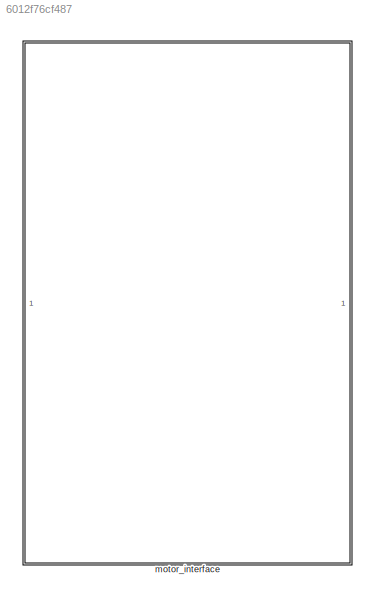
MODEL slx_6012f76cf487
KIND library
CONFIG AbsTol = auto
CONFIG EnableMultiTasking = off
CONFIG FixedStep = auto
CONFIG MaxStep = auto
CONFIG MinStep = auto
CONFIG RelTol = 1e-3
CONFIG SampleTimeConstraint = Unconstrained
CONFIG SolverName = VariableStepAuto
CONFIG StartTime = 0.0
CONFIG StopTime = 10.0
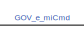
[diagram: motor_interface - part 1/4, top center region]
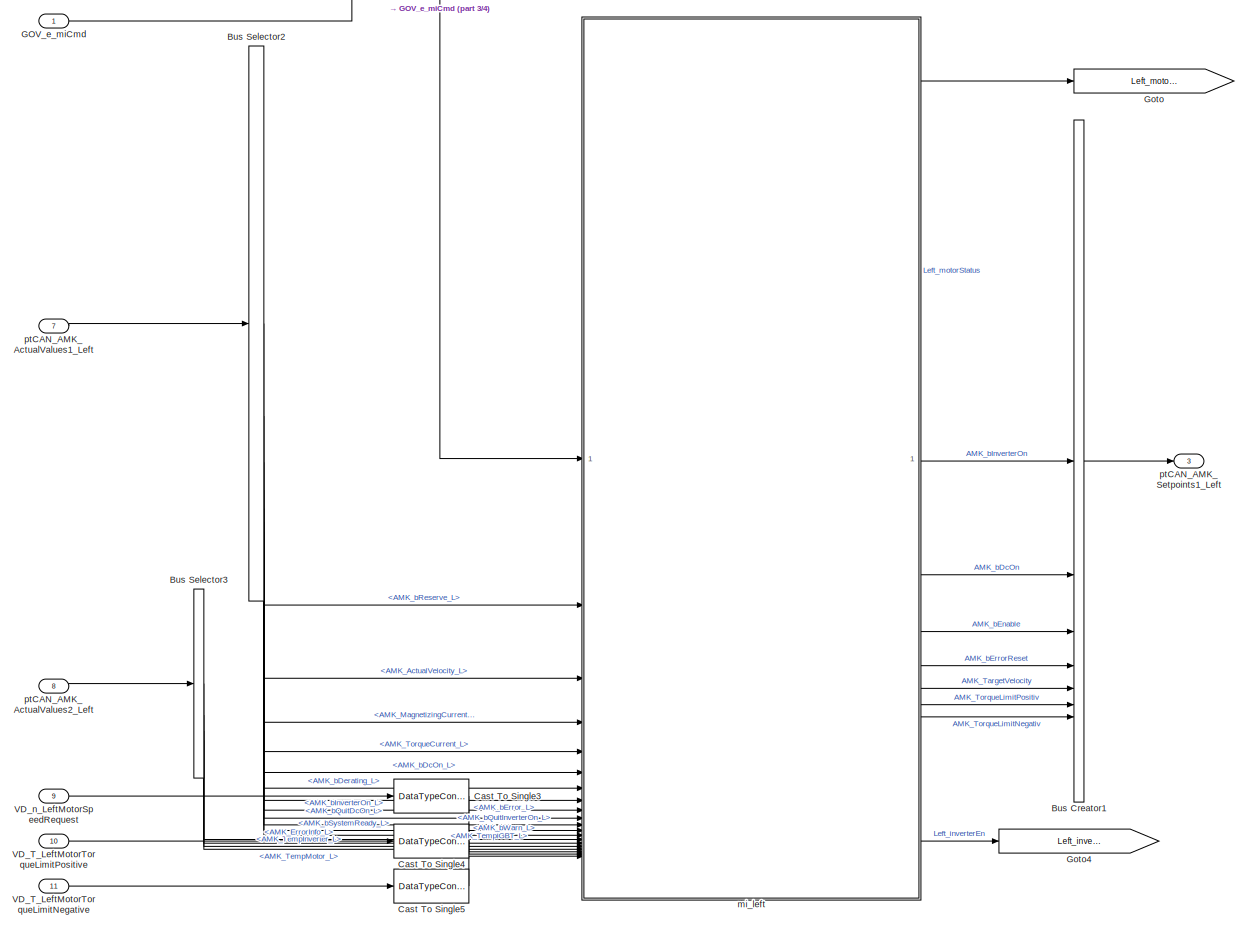
[diagram: motor_interface - part 2/4, top left region]
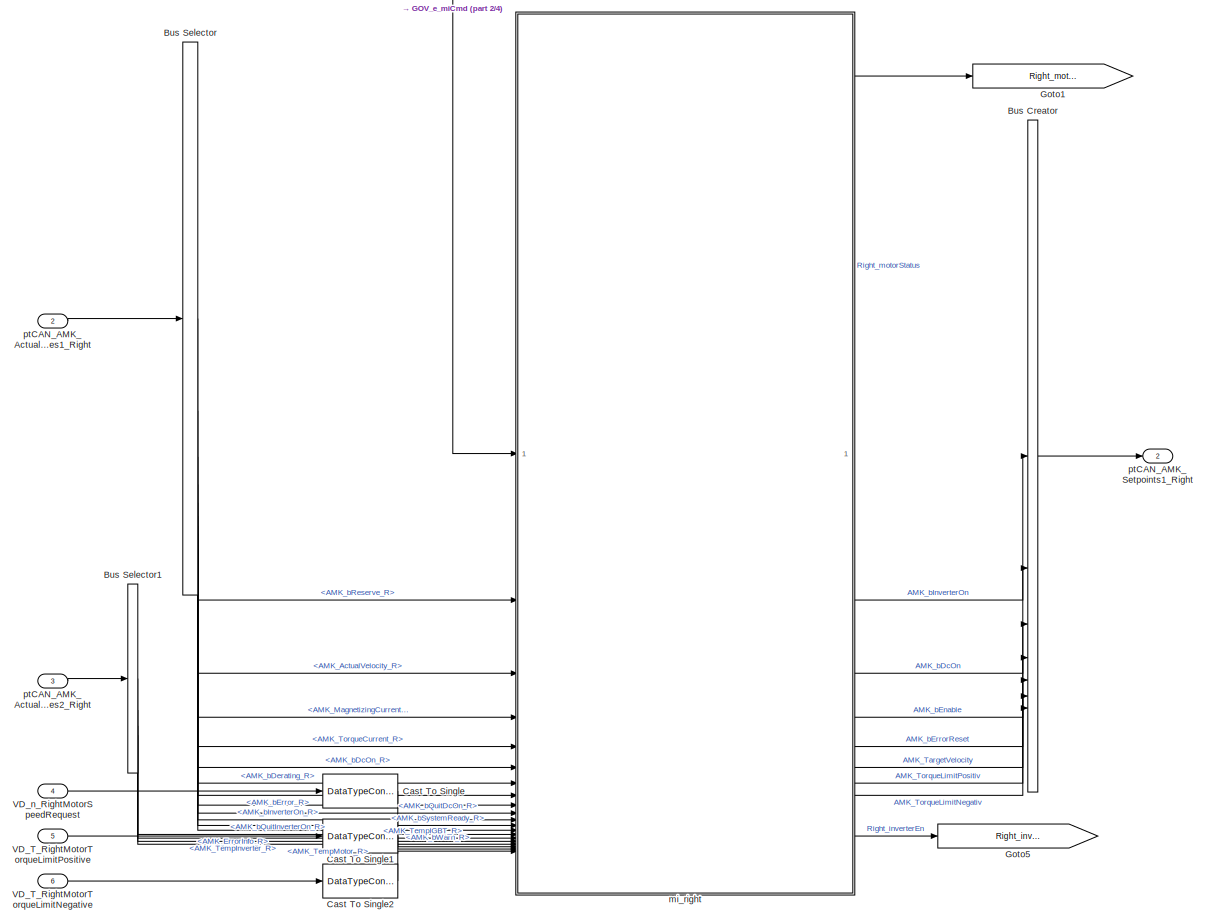
[diagram: motor_interface - part 3/4, top right region]
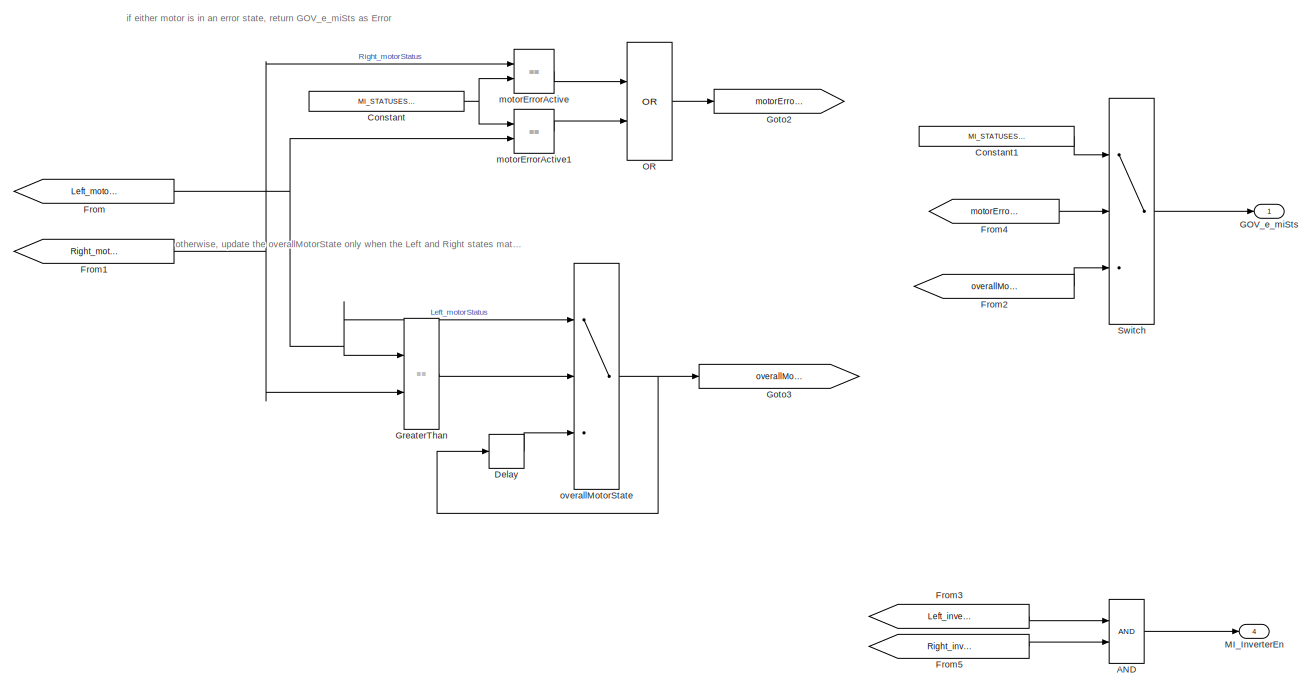
[diagram: motor_interface - part 4/4, bottom right region]
BLOCK [SubSystem] motor_interface
BLOCK [Logic] motor_interface/AND
  AllPortsSameDT = off
  OutDataTypeStr = boolean
BLOCK [BusCreator] motor_interface/Bus Creator
  DisplayOption = bar
  InheritFromInputs = on
  Inputs = 7
BLOCK [BusCreator] motor_interface/Bus Creator1
  DisplayOption = bar
  InheritFromInputs = on
  Inputs = 7
BLOCK [BusSelector] motor_interface/Bus Selector
  OutputSignals = AMK_bReserve_R,AMK_ActualVelocity_R,AMK_MagnetizingCurrent_R,AMK_TorqueCurrent_R,AMK_bDcOn_R,AMK_bDerating_R,AMK_bError_R,AMK_bInverterOn_R,AMK_bQuitDcOn_R,AMK_bQuitInverterOn_R,AMK_bSystemReady_R,AMK_bWarn_R
BLOCK [BusSelector] motor_interface/Bus Selector1
  OutputSignals = AMK_ErrorInfo_R,AMK_TempIGBT_R,AMK_TempInverter_R,AMK_TempMotor_R
BLOCK [BusSelector] motor_interface/Bus Selector2
  OutputSignals = AMK_bReserve_L,AMK_ActualVelocity_L,AMK_MagnetizingCurrent_L,AMK_TorqueCurrent_L,AMK_bDcOn_L,AMK_bDerating_L,AMK_bError_L,AMK_bInverterOn_L,AMK_bQuitDcOn_L,AMK_bQuitInverterOn_L,AMK_bSystemReady_L,AMK_bWarn_L
BLOCK [BusSelector] motor_interface/Bus Selector3
  OutputSignals = AMK_ErrorInfo_L,AMK_TempIGBT_L,AMK_TempInverter_L,AMK_TempMotor_L
BLOCK [DataTypeConversion] motor_interface/Cast To Single
  OutDataTypeStr = single
  RndMeth = Floor
  SaturateOnIntegerOverflow = off
BLOCK [DataTypeConversion] motor_interface/Cast To Single1
  OutDataTypeStr = single
  RndMeth = Floor
  SaturateOnIntegerOverflow = off
BLOCK [DataTypeConversion] motor_interface/Cast To Single2
  OutDataTypeStr = single
  RndMeth = Floor
  SaturateOnIntegerOverflow = off
BLOCK [DataTypeConversion] motor_interface/Cast To Single3
  OutDataTypeStr = single
  RndMeth = Floor
  SaturateOnIntegerOverflow = off
BLOCK [DataTypeConversion] motor_interface/Cast To Single4
  OutDataTypeStr = single
  RndMeth = Floor
  SaturateOnIntegerOverflow = off
BLOCK [DataTypeConversion] motor_interface/Cast To Single5
  OutDataTypeStr = single
  RndMeth = Floor
  SaturateOnIntegerOverflow = off
BLOCK [Constant] motor_interface/Constant
  OutDataTypeStr = Enum: MI_STATUSES
  Value = MI_STATUSES.MI_STS_ERROR
BLOCK [Constant] motor_interface/Constant1
  OutDataTypeStr = Enum: MI_STATUSES
  Value = MI_STATUSES.MI_STS_ERROR
BLOCK [Delay] motor_interface/Delay
  DelayLength = 1
  InitialCondition = MI_STATUSES.OFF
  InputPortMap = u0
BLOCK [From] motor_interface/From
  GotoTag = Left_motorStatus
BLOCK [From] motor_interface/From1
  GotoTag = Right_motorStatus
BLOCK [From] motor_interface/From2
  GotoTag = overallMotorState
BLOCK [From] motor_interface/From3
  GotoTag = Left_inverterEn
BLOCK [From] motor_interface/From4
  GotoTag = motorErrorActive
BLOCK [From] motor_interface/From5
  GotoTag = Right_inverterEn
BLOCK [Inport] motor_interface/GOV_e_miCmd
BLOCK [Outport] motor_interface/GOV_e_miSts
BLOCK [Goto] motor_interface/Goto
  GotoTag = Left_motorStatus
BLOCK [Goto] motor_interface/Goto1
  GotoTag = Right_motorStatus
BLOCK [Goto] motor_interface/Goto2
  GotoTag = motorErrorActive
BLOCK [Goto] motor_interface/Goto3
  GotoTag = overallMotorState
BLOCK [Goto] motor_interface/Goto4
  GotoTag = Left_inverterEn
BLOCK [Goto] motor_interface/Goto5
  GotoTag = Right_inverterEn
BLOCK [RelationalOperator] motor_interface/GreaterThan
  InputSameDT = off
  Operator = ==
  OutDataTypeStr = boolean
  RndMeth = Simplest
BLOCK [Outport] motor_interface/MI_InverterEn
  Port = 4
BLOCK [Logic] motor_interface/OR
  AllPortsSameDT = off
  IconShape = distinctive
  Operator = OR
  OutDataTypeStr = boolean
BLOCK [Switch] motor_interface/Switch
  Criteria = u2 > Threshold
  InputSameDT = off
  SaturateOnIntegerOverflow = off
BLOCK [Inport] motor_interface/VD_T_LeftMotorTorqueLimitNegative
  Port = 11
BLOCK [Inport] motor_interface/VD_T_LeftMotorTorqueLimitPositive
  Port = 10
BLOCK [Inport] motor_interface/VD_T_RightMotorTorqueLimitNegative
  Port = 6
BLOCK [Inport] motor_interface/VD_T_RightMotorTorqueLimitPositive
  Port = 5
BLOCK [Inport] motor_interface/VD_n_LeftMotorSpeedRequest
  Port = 9
BLOCK [Inport] motor_interface/VD_n_RightMotorSpeedRequest
  Port = 4
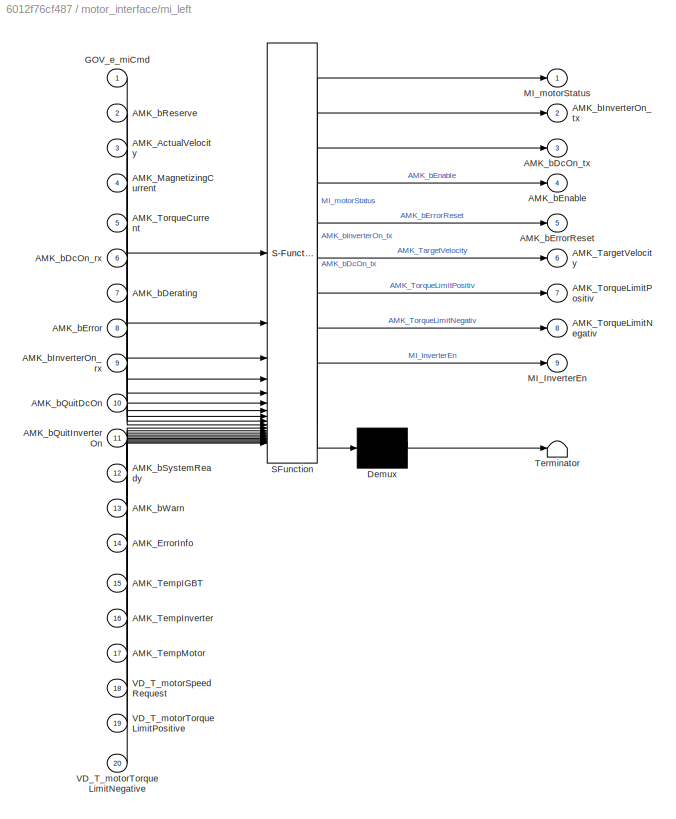
BLOCK [SubSystem] motor_interface/mi_left
  ErrorFcn = Stateflow.Translate.translate
  PermitHierarchicalResolution = ExplicitOnly
  SFBlockType = Chart
  TreatAsAtomicUnit = on
BLOCK [Demux] motor_interface/mi_left/ Demux 
  Outputs = 1
BLOCK [S-Function] motor_interface/mi_left/ SFunction 
  EnableBusSupport = off
  FunctionName = sf_sfun
  PortCounts = [20 10]
  SFcnIsStateOwnerBlock = off
  SFunctionDeploymentMode = off
  Tag = Stateflow S-Function 9
BLOCK [Terminator] motor_interface/mi_left/ Terminator 
BLOCK [Inport] motor_interface/mi_left/AMK_ActualVelocity
  Port = 3
BLOCK [Inport] motor_interface/mi_left/AMK_ErrorInfo
  Port = 14
BLOCK [Inport] motor_interface/mi_left/AMK_MagnetizingCurrent
  Port = 4
BLOCK [Outport] motor_interface/mi_left/AMK_TargetVelocity
  Port = 6
BLOCK [Inport] motor_interface/mi_left/AMK_TempIGBT
  Port = 15
BLOCK [Inport] motor_interface/mi_left/AMK_TempInverter
  Port = 16
BLOCK [Inport] motor_interface/mi_left/AMK_TempMotor
  Port = 17
BLOCK [Inport] motor_interface/mi_left/AMK_TorqueCurrent
  Port = 5
BLOCK [Outport] motor_interface/mi_left/AMK_TorqueLimitNegativ
  Port = 8
BLOCK [Outport] motor_interface/mi_left/AMK_TorqueLimitPositiv
  Port = 7
BLOCK [Inport] motor_interface/mi_left/AMK_bDcOn_rx
  Port = 6
BLOCK [Outport] motor_interface/mi_left/AMK_bDcOn_tx
  Port = 3
BLOCK [Inport] motor_interface/mi_left/AMK_bDerating
  Port = 7
BLOCK [Outport] motor_interface/mi_left/AMK_bEnable
  Port = 4
BLOCK [Inport] motor_interface/mi_left/AMK_bError
  Port = 8
BLOCK [Outport] motor_interface/mi_left/AMK_bErrorReset
  Port = 5
BLOCK [Inport] motor_interface/mi_left/AMK_bInverterOn_rx
  Port = 9
BLOCK [Outport] motor_interface/mi_left/AMK_bInverterOn_tx
  Port = 2
BLOCK [Inport] motor_interface/mi_left/AMK_bQuitDcOn
  Port = 10
BLOCK [Inport] motor_interface/mi_left/AMK_bQuitInverterOn
  Port = 11
BLOCK [Inport] motor_interface/mi_left/AMK_bReserve
  Port = 2
BLOCK [Inport] motor_interface/mi_left/AMK_bSystemReady
  Port = 12
BLOCK [Inport] motor_interface/mi_left/AMK_bWarn
  Port = 13
BLOCK [Inport] motor_interface/mi_left/GOV_e_miCmd
BLOCK [Outport] motor_interface/mi_left/MI_InverterEn
  Port = 9
BLOCK [Outport] motor_interface/mi_left/MI_motorStatus
BLOCK [Inport] motor_interface/mi_left/VD_T_motorSpeedRequest
  Port = 18
BLOCK [Inport] motor_interface/mi_left/VD_T_motorTorqueLimitNegative
  Port = 20
BLOCK [Inport] motor_interface/mi_left/VD_T_motorTorqueLimitPositive
  Port = 19
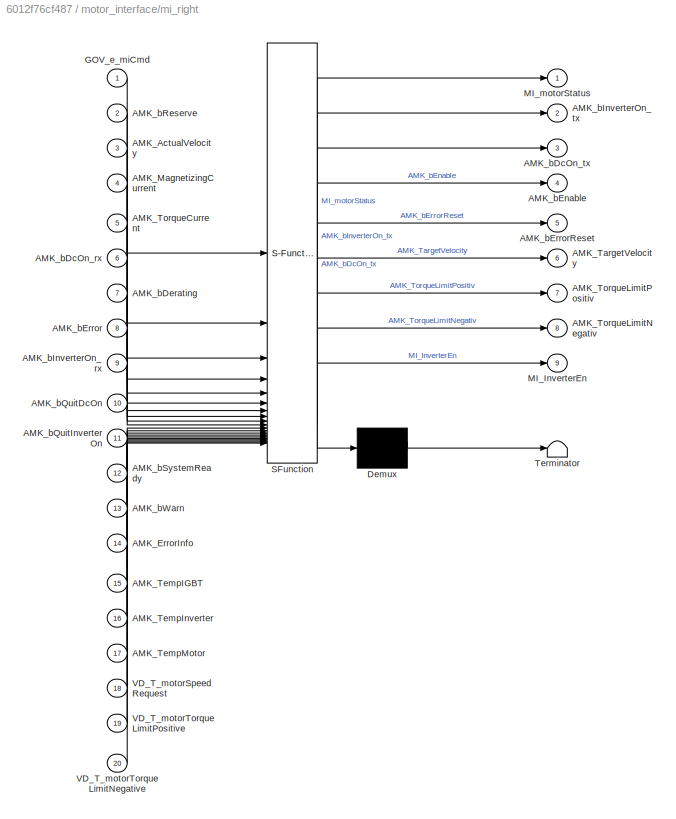
BLOCK [SubSystem] motor_interface/mi_right
  ErrorFcn = Stateflow.Translate.translate
  PermitHierarchicalResolution = ExplicitOnly
  SFBlockType = Chart
  TreatAsAtomicUnit = on
BLOCK [Demux] motor_interface/mi_right/ Demux 
  Outputs = 1
BLOCK [S-Function] motor_interface/mi_right/ SFunction 
  EnableBusSupport = off
  FunctionName = sf_sfun
  PortCounts = [20 10]
  SFcnIsStateOwnerBlock = off
  SFunctionDeploymentMode = off
  Tag = Stateflow S-Function 10
BLOCK [Terminator] motor_interface/mi_right/ Terminator 
BLOCK [Inport] motor_interface/mi_right/AMK_ActualVelocity
  Port = 3
BLOCK [Inport] motor_interface/mi_right/AMK_ErrorInfo
  Port = 14
BLOCK [Inport] motor_interface/mi_right/AMK_MagnetizingCurrent
  Port = 4
BLOCK [Outport] motor_interface/mi_right/AMK_TargetVelocity
  Port = 6
BLOCK [Inport] motor_interface/mi_right/AMK_TempIGBT
  Port = 15
BLOCK [Inport] motor_interface/mi_right/AMK_TempInverter
  Port = 16
BLOCK [Inport] motor_interface/mi_right/AMK_TempMotor
  Port = 17
BLOCK [Inport] motor_interface/mi_right/AMK_TorqueCurrent
  Port = 5
BLOCK [Outport] motor_interface/mi_right/AMK_TorqueLimitNegativ
  Port = 8
BLOCK [Outport] motor_interface/mi_right/AMK_TorqueLimitPositiv
  Port = 7
BLOCK [Inport] motor_interface/mi_right/AMK_bDcOn_rx
  Port = 6
BLOCK [Outport] motor_interface/mi_right/AMK_bDcOn_tx
  Port = 3
BLOCK [Inport] motor_interface/mi_right/AMK_bDerating
  Port = 7
BLOCK [Outport] motor_interface/mi_right/AMK_bEnable
  Port = 4
BLOCK [Inport] motor_interface/mi_right/AMK_bError
  Port = 8
BLOCK [Outport] motor_interface/mi_right/AMK_bErrorReset
  Port = 5
BLOCK [Inport] motor_interface/mi_right/AMK_bInverterOn_rx
  Port = 9
BLOCK [Outport] motor_interface/mi_right/AMK_bInverterOn_tx
  Port = 2
BLOCK [Inport] motor_interface/mi_right/AMK_bQuitDcOn
  Port = 10
BLOCK [Inport] motor_interface/mi_right/AMK_bQuitInverterOn
  Port = 11
BLOCK [Inport] motor_interface/mi_right/AMK_bReserve
  Port = 2
BLOCK [Inport] motor_interface/mi_right/AMK_bSystemReady
  Port = 12
BLOCK [Inport] motor_interface/mi_right/AMK_bWarn
  Port = 13
BLOCK [Inport] motor_interface/mi_right/GOV_e_miCmd
BLOCK [Outport] motor_interface/mi_right/MI_InverterEn
  Port = 9
BLOCK [Outport] motor_interface/mi_right/MI_motorStatus
BLOCK [Inport] motor_interface/mi_right/VD_T_motorSpeedRequest
  Port = 18
BLOCK [Inport] motor_interface/mi_right/VD_T_motorTorqueLimitNegative
  Port = 20
BLOCK [Inport] motor_interface/mi_right/VD_T_motorTorqueLimitPositive
  Port = 19
BLOCK [RelationalOperator] motor_interface/motorErrorActive
  InputSameDT = off
  Operator = ==
  OutDataTypeStr = boolean
  RndMeth = Simplest
BLOCK [RelationalOperator] motor_interface/motorErrorActive1
  InputSameDT = off
  Operator = ==
  OutDataTypeStr = boolean
  RndMeth = Simplest
BLOCK [Switch] motor_interface/overallMotorState
  Criteria = u2 > Threshold
  InputSameDT = off
  SaturateOnIntegerOverflow = off
BLOCK [Inport] motor_interface/ptCAN_AMK_ActualValues1_Left
  Port = 7
BLOCK [Inport] motor_interface/ptCAN_AMK_ActualValues1_Right
  Port = 2
BLOCK [Inport] motor_interface/ptCAN_AMK_ActualValues2_Left
  Port = 8
BLOCK [Inport] motor_interface/ptCAN_AMK_ActualValues2_Right
  Port = 3
BLOCK [Outport] motor_interface/ptCAN_AMK_Setpoints1_Left
  Port = 3
BLOCK [Outport] motor_interface/ptCAN_AMK_Setpoints1_Right
  Port = 2
ANNOTATION motor_interface: if either motor is in an error state, return GOV_e_miSts as Error
ANNOTATION motor_interface: otherwise, update the overallMotorState only when the Left and Right states match, and return as GOV_e_miSts
LINE motor_interface/AND:1 -> motor_interface/MI_InverterEn:1
LINE motor_interface/Bus Creator1:1 -> motor_interface/ptCAN_AMK_Setpoints1_Left:1
LINE motor_interface/Bus Creator:1 -> motor_interface/ptCAN_AMK_Setpoints1_Right:1
LINE motor_interface/Bus Selector1:1 -> motor_interface/mi_right:14
LINE motor_interface/Bus Selector1:2 -> motor_interface/mi_right:15
LINE motor_interface/Bus Selector1:3 -> motor_interface/mi_right:16
LINE motor_interface/Bus Selector1:4 -> motor_interface/mi_right:17
LINE motor_interface/Bus Selector2:1 -> motor_interface/mi_left:2
LINE motor_interface/Bus Selector2:10 -> motor_interface/mi_left:11
LINE motor_interface/Bus Selector2:11 -> motor_interface/mi_left:12
LINE motor_interface/Bus Selector2:12 -> motor_interface/mi_left:13
LINE motor_interface/Bus Selector2:2 -> motor_interface/mi_left:3
LINE motor_interface/Bus Selector2:3 -> motor_interface/mi_left:4
LINE motor_interface/Bus Selector2:4 -> motor_interface/mi_left:5
LINE motor_interface/Bus Selector2:5 -> motor_interface/mi_left:6
LINE motor_interface/Bus Selector2:6 -> motor_interface/mi_left:7
LINE motor_interface/Bus Selector2:7 -> motor_interface/mi_left:8
LINE motor_interface/Bus Selector2:8 -> motor_interface/mi_left:9
LINE motor_interface/Bus Selector2:9 -> motor_interface/mi_left:10
LINE motor_interface/Bus Selector3:1 -> motor_interface/mi_left:14
LINE motor_interface/Bus Selector3:2 -> motor_interface/mi_left:15
LINE motor_interface/Bus Selector3:3 -> motor_interface/mi_left:16
LINE motor_interface/Bus Selector3:4 -> motor_interface/mi_left:17
LINE motor_interface/Bus Selector:1 -> motor_interface/mi_right:2
LINE motor_interface/Bus Selector:10 -> motor_interface/mi_right:11
LINE motor_interface/Bus Selector:11 -> motor_interface/mi_right:12
LINE motor_interface/Bus Selector:12 -> motor_interface/mi_right:13
LINE motor_interface/Bus Selector:2 -> motor_interface/mi_right:3
LINE motor_interface/Bus Selector:3 -> motor_interface/mi_right:4
LINE motor_interface/Bus Selector:4 -> motor_interface/mi_right:5
LINE motor_interface/Bus Selector:5 -> motor_interface/mi_right:6
LINE motor_interface/Bus Selector:6 -> motor_interface/mi_right:7
LINE motor_interface/Bus Selector:7 -> motor_interface/mi_right:8
LINE motor_interface/Bus Selector:8 -> motor_interface/mi_right:9
LINE motor_interface/Bus Selector:9 -> motor_interface/mi_right:10
LINE motor_interface/Cast To Single1:1 -> motor_interface/mi_right:19
LINE motor_interface/Cast To Single2:1 -> motor_interface/mi_right:20
LINE motor_interface/Cast To Single3:1 -> motor_interface/mi_left:18
LINE motor_interface/Cast To Single4:1 -> motor_interface/mi_left:19
LINE motor_interface/Cast To Single5:1 -> motor_interface/mi_left:20
LINE motor_interface/Cast To Single:1 -> motor_interface/mi_right:18
LINE motor_interface/Constant1:1 -> motor_interface/Switch:1
NET motor_interface/Constant:1 -> motor_interface/motorErrorActive1:1, motor_interface/motorErrorActive:2
LINE motor_interface/Delay:1 -> motor_interface/overallMotorState:3
NET motor_interface/From1:1 -> motor_interface/GreaterThan:2, motor_interface/motorErrorActive:1
LINE motor_interface/From2:1 -> motor_interface/Switch:3
LINE motor_interface/From3:1 -> motor_interface/AND:1
LINE motor_interface/From4:1 -> motor_interface/Switch:2
LINE motor_interface/From5:1 -> motor_interface/AND:2
NET motor_interface/From:1 -> motor_interface/GreaterThan:1, motor_interface/motorErrorActive1:2, motor_interface/overallMotorState:1
NET motor_interface/GOV_e_miCmd:1 -> motor_interface/mi_left:1, motor_interface/mi_right:1
LINE motor_interface/GreaterThan:1 -> motor_interface/overallMotorState:2
LINE motor_interface/OR:1 -> motor_interface/Goto2:1
LINE motor_interface/Switch:1 -> motor_interface/GOV_e_miSts:1
LINE motor_interface/VD_T_LeftMotorTorqueLimitNegative:1 -> motor_interface/Cast To Single5:1
LINE motor_interface/VD_T_LeftMotorTorqueLimitPositive:1 -> motor_interface/Cast To Single4:1
LINE motor_interface/VD_T_RightMotorTorqueLimitNegative:1 -> motor_interface/Cast To Single2:1
LINE motor_interface/VD_T_RightMotorTorqueLimitPositive:1 -> motor_interface/Cast To Single1:1
LINE motor_interface/VD_n_LeftMotorSpeedRequest:1 -> motor_interface/Cast To Single3:1
LINE motor_interface/VD_n_RightMotorSpeedRequest:1 -> motor_interface/Cast To Single:1
LINE motor_interface/mi_left:1 -> motor_interface/Goto:1
LINE motor_interface/mi_left:2 -> motor_interface/Bus Creator1:1
LINE motor_interface/mi_left:3 -> motor_interface/Bus Creator1:2
LINE motor_interface/mi_left:4 -> motor_interface/Bus Creator1:3
LINE motor_interface/mi_left:5 -> motor_interface/Bus Creator1:4
LINE motor_interface/mi_left:6 -> motor_interface/Bus Creator1:5
LINE motor_interface/mi_left:7 -> motor_interface/Bus Creator1:6
LINE motor_interface/mi_left:8 -> motor_interface/Bus Creator1:7
LINE motor_interface/mi_left:9 -> motor_interface/Goto4:1
LINE motor_interface/mi_right:1 -> motor_interface/Goto1:1
LINE motor_interface/mi_right:2 -> motor_interface/Bus Creator:1
LINE motor_interface/mi_right:3 -> motor_interface/Bus Creator:2
LINE motor_interface/mi_right:4 -> motor_interface/Bus Creator:3
LINE motor_interface/mi_right:5 -> motor_interface/Bus Creator:4
LINE motor_interface/mi_right:6 -> motor_interface/Bus Creator:5
LINE motor_interface/mi_right:7 -> motor_interface/Bus Creator:6
LINE motor_interface/mi_right:8 -> motor_interface/Bus Creator:7
LINE motor_interface/mi_right:9 -> motor_interface/Goto5:1
LINE motor_interface/motorErrorActive1:1 -> motor_interface/OR:2
LINE motor_interface/motorErrorActive:1 -> motor_interface/OR:1
NET motor_interface/overallMotorState:1 -> motor_interface/Delay:1, motor_interface/Goto3:1
LINE motor_interface/ptCAN_AMK_ActualValues1_Left:1 -> motor_interface/Bus Selector2:1
LINE motor_interface/ptCAN_AMK_ActualValues1_Right:1 -> motor_interface/Bus Selector:1
LINE motor_interface/ptCAN_AMK_ActualValues2_Left:1 -> motor_interface/Bus Selector3:1
LINE motor_interface/ptCAN_AMK_ActualValues2_Right:1 -> motor_interface/Bus Selector1:1
note: NET lines group one-source signal fan-out (src -> all destinations, sorted); 1:1 wires keep LINE
CHART motor_interface/mi_left states=15 transitions=31
  STATE_LABEL 'motorOff_waitingForGov\nen:\nMI_motorStatus = MI_STATUSES.OFF;\nAMK_bInverterOn_tx = 0;\nAMK_bDcOn_tx = 0;\nAMK_bEnable = 0;\nAMK_bErrorReset = 0;\nAMK_TargetVelocity = 0;\nAMK_TorqueLimitPositiv = 0;\nAMK_TorqueLimitNegativ = 0;\nMI_InverterEn = 0;'
  STATE_LABEL 'AMK_startup'
  STATE_LABEL 'waiting_sysReady\nen:\nMI_motorStatus = MI_STATUSES.STARTUP;'
  STATE_LABEL 'toggleDCon\nen:\nAMK_bDcOn_tx = 1;'
  STATE_LABEL 'enforceSetpointsZero\nen:\nAMK_TargetVelocity = 0;\nAMK_TorqueLimitPositiv = 0;\nAMK_TorqueLimitNegativ = 0;'
  STATE_LABEL 'commandOn\nen:\nAMK_bEnable = 1;\nAMK_bInverterOn_tx = 1;\n'
  STATE_LABEL '[GOV_e_miCmd == MI_CMD.CMD_STARTUP]'
  STATE_LABEL '[AMK_bError==1]'
  STATE_LABEL '[AMK_bSystemReady==1]'
  STATE_LABEL '[AMK_bError==1]'
  STATE_LABEL '[(AMK_bDcOn_rx==1) ...\n&& (AMK_bQuitDcOn==1)]'
  STATE_LABEL '[AMK_bError==1]'
  STATE_LABEL '[AMK_bError==1]'
  STATE_LABEL 'after(100,msec)'
  STATE_LABEL '[AMK_bInverterOn_rx ==1]'
  STATE_LABEL 'waiting_sysReady\nen:\nMI_motorStatus = MI_STATUSES.STARTUP;'
  STATE_LABEL 'toggleDCon\nen:\nAMK_bDcOn_tx = 1;'
  STATE_LABEL 'enforceSetpointsZero\nen:\nAMK_TargetVelocity = 0;\nAMK_TorqueLimitPositiv = 0;\nAMK_TorqueLimitNegativ = 0;'
  STATE_LABEL 'commandOn\nen:\nAMK_bEnable = 1;\nAMK_bInverterOn_tx = 1;\n'
  STATE_LABEL 'AMK_errorReset'
  STATE_LABEL 'toggleReset\nen:\nAMK_bErrorReset = 0;'
  STATE_LABEL 'sendReset\nen:\nAMK_bErrorReset = 1;'
  STATE_LABEL 'toggleEnable\nen:\nAMK_bEnable = 0;'
  STATE_LABEL 'enforceSetpointsZero\nen:\nAMK_TargetVelocity = 0;\nAMK_TorqueLimitPositiv = 0;\nAMK_TorqueLimitNegativ = 0;\nAMK_bInverterOn_tx = 0;'
  STATE_LABEL '[AMK_bSystemReady==1]'
  STATE_LABEL 'after(500,msec)'
  STATE_LABEL 'after(500,msec)'
  STATE_LABEL '[AMK_bInverterOn_rx==0]'
  STATE_LABEL '[GOV_e_miCmd == MI_CMD.ERR_RESET]'
  STATE_LABEL 'toggleReset\nen:\nAMK_bErrorReset = 0;'
  STATE_LABEL 'sendReset\nen:\nAMK_bErrorReset = 1;'
  STATE_LABEL 'toggleEnable\nen:\nAMK_bEnable = 0;'
  STATE_LABEL 'enforceSetpointsZero\nen:\nAMK_TargetVelocity = 0;\nAMK_TorqueLimitPositiv = 0;\nAMK_TorqueLimitNegativ = 0;\nAMK_bInverterOn_tx = 0;'
  STATE_LABEL 'AMK_shutdown\nen:\nAMK_TargetVelocity = 0;\nAMK_TorqueLimitPositiv = 0;\nAMK_TorqueLimitNegativ = 0;\nMI_InverterEn = 0;'
  STATE_LABEL 'AMK_errorDetected\nen:\nMI_motorStatus = MI_STATUSES.MI_STS_ERROR;\n'
  STATE_LABEL 'AMK_ready\nen, du:\nMI_motorStatus = MI_STATUSES.READY;\nMI_InverterEn = 1;'
  STATE_LABEL 'AMK_running\nduring:\nMI_motorStatus = MI_STATUSES.RUNNING;\nAMK_TargetVelocity = VD_T_motorSpeedRequest;\nAMK_TorqueLimitPositiv = VD_T_motorTorqueLimitPositive;\nAMK_TorqueLimitNegativ = VD_T_motorTorqueLimitNegative;\n'
CHART motor_interface/mi_right states=15 transitions=31
  STATE_LABEL 'motorOff_waitingForGov\nen:\nMI_motorStatus = MI_STATUSES.OFF;\nAMK_bInverterOn_tx = 0;\nAMK_bDcOn_tx = 0;\nAMK_bEnable = 0;\nAMK_bErrorReset = 0;\nAMK_TargetVelocity = 0;\nAMK_TorqueLimitPositiv = 0;\nAMK_TorqueLimitNegativ = 0;\nMI_InverterEn = 0;'
  STATE_LABEL 'AMK_startup'
  STATE_LABEL 'waiting_sysReady\nen:\nMI_motorStatus = MI_STATUSES.STARTUP;'
  STATE_LABEL 'toggleDCon\nen:\nAMK_bDcOn_tx = 1;'
  STATE_LABEL 'enforceSetpointsZero\nen:\nAMK_TargetVelocity = 0;\nAMK_TorqueLimitPositiv = 0;\nAMK_TorqueLimitNegativ = 0;'
  STATE_LABEL 'commandOn\nen:\nAMK_bEnable = 1;\nAMK_bInverterOn_tx = 1;\n'
  STATE_LABEL '[GOV_e_miCmd == MI_CMD.CMD_STARTUP]'
  STATE_LABEL '[AMK_bError==1]'
  STATE_LABEL '[AMK_bSystemReady==1]'
  STATE_LABEL '[AMK_bError==1]'
  STATE_LABEL '[(AMK_bDcOn_rx==1) ...\n&& (AMK_bQuitDcOn==1)]'
  STATE_LABEL '[AMK_bError==1]'
  STATE_LABEL '[AMK_bError==1]'
  STATE_LABEL 'after(100,msec)'
  STATE_LABEL '[AMK_bInverterOn_rx ==1]'
  STATE_LABEL 'waiting_sysReady\nen:\nMI_motorStatus = MI_STATUSES.STARTUP;'
  STATE_LABEL 'toggleDCon\nen:\nAMK_bDcOn_tx = 1;'
  STATE_LABEL 'enforceSetpointsZero\nen:\nAMK_TargetVelocity = 0;\nAMK_TorqueLimitPositiv = 0;\nAMK_TorqueLimitNegativ = 0;'
  STATE_LABEL 'commandOn\nen:\nAMK_bEnable = 1;\nAMK_bInverterOn_tx = 1;\n'
  STATE_LABEL 'AMK_errorReset'
  STATE_LABEL 'toggleReset\nen:\nAMK_bErrorReset = 0;'
  STATE_LABEL 'sendReset\nen:\nAMK_bErrorReset = 1;'
  STATE_LABEL 'toggleEnable\nen:\nAMK_bEnable = 0;'
  STATE_LABEL 'enforceSetpointsZero\nen:\nAMK_TargetVelocity = 0;\nAMK_TorqueLimitPositiv = 0;\nAMK_TorqueLimitNegativ = 0;\nAMK_bInverterOn_tx = 0;'
  STATE_LABEL '[AMK_bSystemReady==1]'
  STATE_LABEL 'after(500,msec)'
  STATE_LABEL 'after(500,msec)'
  STATE_LABEL '[AMK_bInverterOn_rx==0]'
  STATE_LABEL '[GOV_e_miCmd == MI_CMD.ERR_RESET]'
  STATE_LABEL 'toggleReset\nen:\nAMK_bErrorReset = 0;'
  STATE_LABEL 'sendReset\nen:\nAMK_bErrorReset = 1;'
  STATE_LABEL 'toggleEnable\nen:\nAMK_bEnable = 0;'
  STATE_LABEL 'enforceSetpointsZero\nen:\nAMK_TargetVelocity = 0;\nAMK_TorqueLimitPositiv = 0;\nAMK_TorqueLimitNegativ = 0;\nAMK_bInverterOn_tx = 0;'
  STATE_LABEL 'AMK_shutdown\nen:\nAMK_TargetVelocity = 0;\nAMK_TorqueLimitPositiv = 0;\nAMK_TorqueLimitNegativ = 0;\nMI_InverterEn = 0;'
  STATE_LABEL 'AMK_errorDetected\nen:\nMI_motorStatus = MI_STATUSES.MI_STS_ERROR;\n'
  STATE_LABEL 'AMK_ready\nen, du:\nMI_motorStatus = MI_STATUSES.READY;\nMI_InverterEn = 1;'
  STATE_LABEL 'AMK_running\nduring:\nMI_motorStatus = MI_STATUSES.RUNNING;\nAMK_TargetVelocity = VD_T_motorSpeedRequest;\nAMK_TorqueLimitPositiv = VD_T_motorTorqueLimitPositive;\nAMK_TorqueLimitNegativ = VD_T_motorTorqueLimitNegative;\n'
CHART  states=0 transitions=0
CHART  states=0 transitions=0
